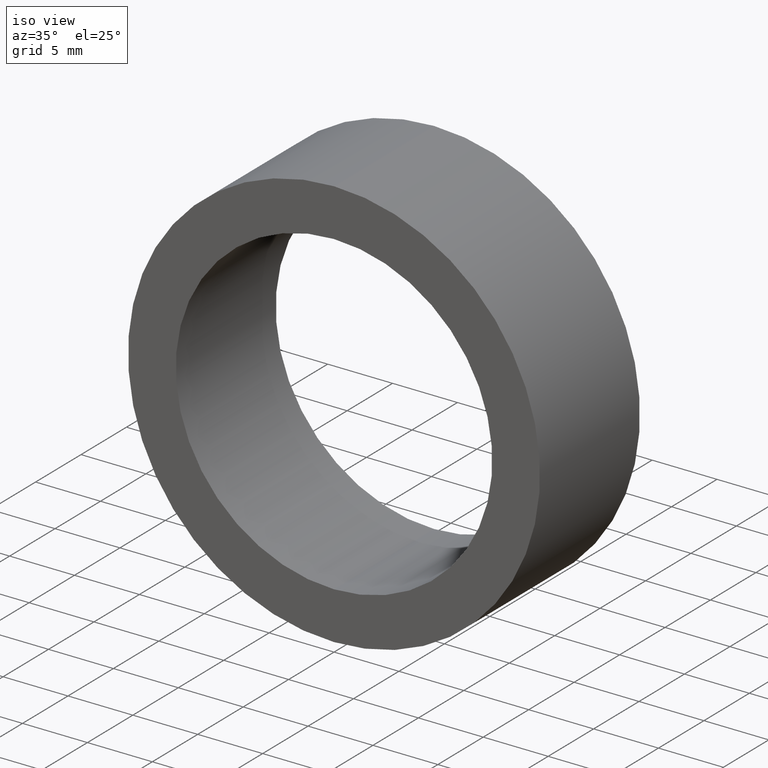
[diagram: clean part render]
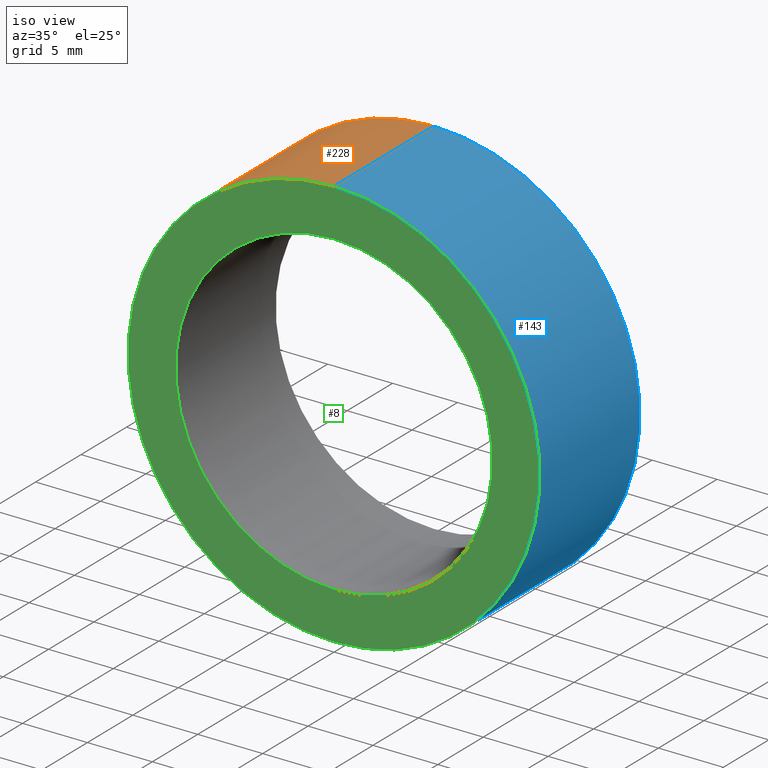
[diagram: same view with three faces highlighted in distinct colors, each labeled with its STEP entity id]
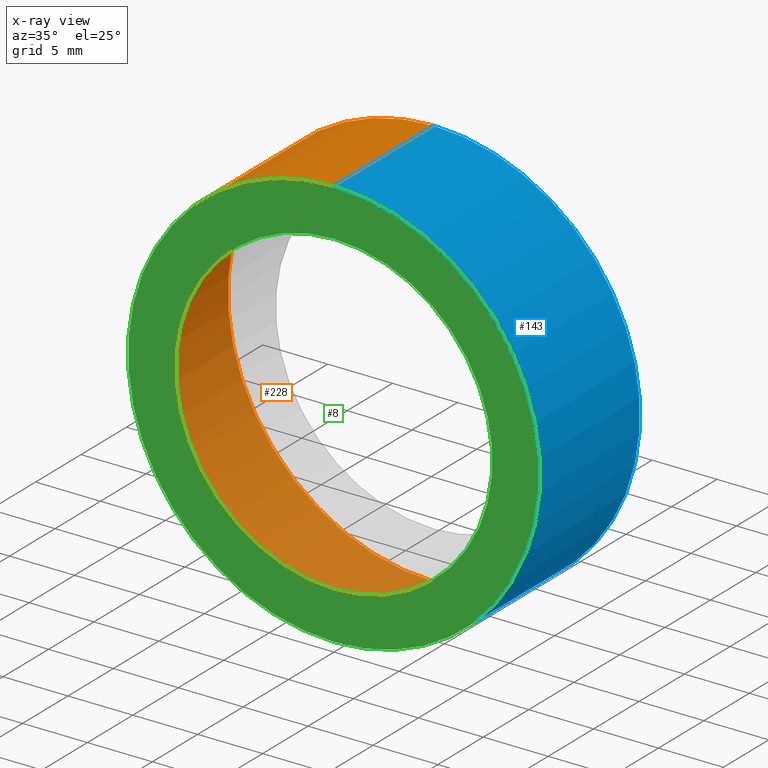
[diagram: x-ray of the same camera — body ghosted, the three highlighted faces saturated]
A machine part, iso view with three faces highlighted in distinct colors.
The next image is the same camera in x-ray (body ghosted, the three faces saturated) — at least one of them is partly hidden behind the body in this view.
Their STEP definitions:

[orange] entity #228 — the highlighted cylindrical surface (partial cylindrical patch) has radius 15.875 mm, axis along (-0, -1, -0).
#17 = CARTESIAN_POINT ( 'NONE',  ( 0.0000000000000000000, 11.00000000000000000, 0.0000000000000000000 ) ) ;
#20 = DIRECTION ( 'NONE',  ( 0.0000000000000000000, 0.0000000000000000000, 1.000000000000000000 ) ) ;
#22 = CARTESIAN_POINT ( 'NONE',  ( 0.0000000000000000000, 11.00000000000000000, -15.87500000000000000 ) ) ;
#31 = ORIENTED_EDGE ( 'NONE', *, *, #135, .T. ) ;
#35 = DIRECTION ( 'NONE',  ( -0.0000000000000000000, -1.000000000000000000, -0.0000000000000000000 ) ) ;
#42 = EDGE_CURVE ( 'NONE', #95, #235, #121, .T. ) ;
#43 = VECTOR ( 'NONE', #103, 1000.000000000000000 ) ;
#57 = DIRECTION ( 'NONE',  ( -0.0000000000000000000, -1.000000000000000000, -0.0000000000000000000 ) ) ;
#58 = VECTOR ( 'NONE', #57, 1000.000000000000000 ) ;
#67 = CIRCLE ( 'NONE', #214, 15.87500000000000000 ) ;
#76 = AXIS2_PLACEMENT_3D ( 'NONE', #171, #101, #20 ) ;
#85 = EDGE_LOOP ( 'NONE', ( #207, #106, #87, #31 ) ) ;
#87 = ORIENTED_EDGE ( 'NONE', *, *, #42, .T. ) ;
#89 = CARTESIAN_POINT ( 'NONE',  ( 1.944126793646423200E-015, 0.0000000000000000000, 15.87500000000000000 ) ) ;
#95 = VERTEX_POINT ( 'NONE', #22 ) ;
#96 = FACE_OUTER_BOUND ( 'NONE', #85, .T. ) ;
#101 = DIRECTION ( 'NONE',  ( 0.0000000000000000000, 1.000000000000000000, 0.0000000000000000000 ) ) ;
#103 = DIRECTION ( 'NONE',  ( -0.0000000000000000000, -1.000000000000000000, -0.0000000000000000000 ) ) ;
#106 = ORIENTED_EDGE ( 'NONE', *, *, #139, .F. ) ;
#109 = EDGE_CURVE ( 'NONE', #142, #226, #221, .T. ) ;
#114 = CARTESIAN_POINT ( 'NONE',  ( 0.0000000000000000000, 0.0000000000000000000, 0.0000000000000000000 ) ) ;
#121 = LINE ( 'NONE', #205, #58 ) ;
#124 = CARTESIAN_POINT ( 'NONE',  ( 0.0000000000000000000, 0.0000000000000000000, -15.87500000000000000 ) ) ;
#135 = EDGE_CURVE ( 'NONE', #235, #226, #67, .T. ) ;
#139 = EDGE_CURVE ( 'NONE', #95, #142, #168, .T. ) ;
#142 = VERTEX_POINT ( 'NONE', #232 ) ;
#145 = DIRECTION ( 'NONE',  ( 0.0000000000000000000, 1.000000000000000000, 0.0000000000000000000 ) ) ;
#157 = DIRECTION ( 'NONE',  ( 0.0000000000000000000, 0.0000000000000000000, 1.000000000000000000 ) ) ;
#168 = CIRCLE ( 'NONE', #76, 15.87500000000000000 ) ;
#171 = CARTESIAN_POINT ( 'NONE',  ( 0.0000000000000000000, 11.00000000000000000, 0.0000000000000000000 ) ) ;
#175 = CYLINDRICAL_SURFACE ( 'NONE', #177, 15.87500000000000000 ) ;
#177 = AXIS2_PLACEMENT_3D ( 'NONE', #17, #35, #179 ) ;
#179 = DIRECTION ( 'NONE',  ( 0.0000000000000000000, 0.0000000000000000000, -1.000000000000000000 ) ) ;
#205 = CARTESIAN_POINT ( 'NONE',  ( 0.0000000000000000000, 11.00000000000000000, -15.87500000000000000 ) ) ;
#207 = ORIENTED_EDGE ( 'NONE', *, *, #109, .F. ) ;
#214 = AXIS2_PLACEMENT_3D ( 'NONE', #114, #145, #157 ) ;
#221 = LINE ( 'NONE', #231, #43 ) ;
#226 = VERTEX_POINT ( 'NONE', #89 ) ;
#228 = ADVANCED_FACE ( 'NONE', ( #96 ), #175, .T. ) ;
#231 = CARTESIAN_POINT ( 'NONE',  ( 1.944126793646423200E-015, 11.00000000000000000, 15.87500000000000000 ) ) ;
#232 = CARTESIAN_POINT ( 'NONE',  ( 1.944126793646423200E-015, 11.00000000000000000, 15.87500000000000000 ) ) ;
#235 = VERTEX_POINT ( 'NONE', #124 ) ;

[blue] entity #143 — the highlighted cylindrical surface (partial cylindrical patch) has radius 15.875 mm, axis along (-0, -1, -0).
#5 = CARTESIAN_POINT ( 'NONE',  ( 0.0000000000000000000, 11.00000000000000000, 0.0000000000000000000 ) ) ;
#13 = CIRCLE ( 'NONE', #148, 15.87500000000000000 ) ;
#18 = CARTESIAN_POINT ( 'NONE',  ( 0.0000000000000000000, 0.0000000000000000000, 0.0000000000000000000 ) ) ;
#19 = CIRCLE ( 'NONE', #54, 15.87500000000000000 ) ;
#22 = CARTESIAN_POINT ( 'NONE',  ( 0.0000000000000000000, 11.00000000000000000, -15.87500000000000000 ) ) ;
#33 = DIRECTION ( 'NONE',  ( 0.0000000000000000000, 0.0000000000000000000, -1.000000000000000000 ) ) ;
#37 = EDGE_CURVE ( 'NONE', #226, #235, #19, .T. ) ;
#42 = EDGE_CURVE ( 'NONE', #95, #235, #121, .T. ) ;
#43 = VECTOR ( 'NONE', #103, 1000.000000000000000 ) ;
#46 = EDGE_CURVE ( 'NONE', #142, #95, #13, .T. ) ;
#53 = ORIENTED_EDGE ( 'NONE', *, *, #37, .T. ) ;
#54 = AXIS2_PLACEMENT_3D ( 'NONE', #18, #82, #198 ) ;
#57 = DIRECTION ( 'NONE',  ( -0.0000000000000000000, -1.000000000000000000, -0.0000000000000000000 ) ) ;
#58 = VECTOR ( 'NONE', #57, 1000.000000000000000 ) ;
#75 = EDGE_LOOP ( 'NONE', ( #138, #123, #53, #81 ) ) ;
#81 = ORIENTED_EDGE ( 'NONE', *, *, #42, .F. ) ;
#82 = DIRECTION ( 'NONE',  ( 0.0000000000000000000, 1.000000000000000000, 0.0000000000000000000 ) ) ;
#89 = CARTESIAN_POINT ( 'NONE',  ( 1.944126793646423200E-015, 0.0000000000000000000, 15.87500000000000000 ) ) ;
#91 = DIRECTION ( 'NONE',  ( 0.0000000000000000000, 0.0000000000000000000, 1.000000000000000000 ) ) ;
#95 = VERTEX_POINT ( 'NONE', #22 ) ;
#103 = DIRECTION ( 'NONE',  ( -0.0000000000000000000, -1.000000000000000000, -0.0000000000000000000 ) ) ;
#109 = EDGE_CURVE ( 'NONE', #142, #226, #221, .T. ) ;
#121 = LINE ( 'NONE', #205, #58 ) ;
#123 = ORIENTED_EDGE ( 'NONE', *, *, #109, .T. ) ;
#124 = CARTESIAN_POINT ( 'NONE',  ( 0.0000000000000000000, 0.0000000000000000000, -15.87500000000000000 ) ) ;
#136 = DIRECTION ( 'NONE',  ( -0.0000000000000000000, -1.000000000000000000, -0.0000000000000000000 ) ) ;
#138 = ORIENTED_EDGE ( 'NONE', *, *, #46, .F. ) ;
#142 = VERTEX_POINT ( 'NONE', #232 ) ;
#143 = ADVANCED_FACE ( 'NONE', ( #174 ), #238, .T. ) ;
#148 = AXIS2_PLACEMENT_3D ( 'NONE', #5, #204, #91 ) ;
#169 = AXIS2_PLACEMENT_3D ( 'NONE', #193, #136, #33 ) ;
#174 = FACE_OUTER_BOUND ( 'NONE', #75, .T. ) ;
#193 = CARTESIAN_POINT ( 'NONE',  ( 0.0000000000000000000, 11.00000000000000000, 0.0000000000000000000 ) ) ;
#198 = DIRECTION ( 'NONE',  ( 0.0000000000000000000, 0.0000000000000000000, 1.000000000000000000 ) ) ;
#204 = DIRECTION ( 'NONE',  ( 0.0000000000000000000, 1.000000000000000000, 0.0000000000000000000 ) ) ;
#205 = CARTESIAN_POINT ( 'NONE',  ( 0.0000000000000000000, 11.00000000000000000, -15.87500000000000000 ) ) ;
#221 = LINE ( 'NONE', #231, #43 ) ;
#226 = VERTEX_POINT ( 'NONE', #89 ) ;
#231 = CARTESIAN_POINT ( 'NONE',  ( 1.944126793646423200E-015, 11.00000000000000000, 15.87500000000000000 ) ) ;
#232 = CARTESIAN_POINT ( 'NONE',  ( 1.944126793646423200E-015, 11.00000000000000000, 15.87500000000000000 ) ) ;
#235 = VERTEX_POINT ( 'NONE', #124 ) ;
#238 = CYLINDRICAL_SURFACE ( 'NONE', #169, 15.87500000000000000 ) ;

[green] entity #8 — the highlighted planar face has unit normal (0, 1, 0).
#3 = DIRECTION ( 'NONE',  ( 0.0000000000000000000, 1.000000000000000000, 0.0000000000000000000 ) ) ;
#4 = DIRECTION ( 'NONE',  ( 0.0000000000000000000, -0.0000000000000000000, 1.000000000000000000 ) ) ;
#8 = ADVANCED_FACE ( 'NONE', ( #242, #216 ), #236, .F. ) ;
#18 = CARTESIAN_POINT ( 'NONE',  ( 0.0000000000000000000, 0.0000000000000000000, 0.0000000000000000000 ) ) ;
#19 = CIRCLE ( 'NONE', #54, 15.87500000000000000 ) ;
#36 = CIRCLE ( 'NONE', #219, 12.19999999999999900 ) ;
#37 = EDGE_CURVE ( 'NONE', #226, #235, #19, .T. ) ;
#48 = ORIENTED_EDGE ( 'NONE', *, *, #201, .T. ) ;
#49 = EDGE_LOOP ( 'NONE', ( #224, #191 ) ) ;
#51 = DIRECTION ( 'NONE',  ( 0.0000000000000000000, 0.0000000000000000000, 1.000000000000000000 ) ) ;
#54 = AXIS2_PLACEMENT_3D ( 'NONE', #18, #82, #198 ) ;
#59 = CARTESIAN_POINT ( 'NONE',  ( 0.0000000000000000000, 0.0000000000000000000, 0.0000000000000000000 ) ) ;
#67 = CIRCLE ( 'NONE', #214, 15.87500000000000000 ) ;
#70 = AXIS2_PLACEMENT_3D ( 'NONE', #127, #237, #194 ) ;
#71 = EDGE_CURVE ( 'NONE', #160, #73, #36, .T. ) ;
#73 = VERTEX_POINT ( 'NONE', #164 ) ;
#82 = DIRECTION ( 'NONE',  ( 0.0000000000000000000, 1.000000000000000000, 0.0000000000000000000 ) ) ;
#89 = CARTESIAN_POINT ( 'NONE',  ( 1.944126793646423200E-015, 0.0000000000000000000, 15.87500000000000000 ) ) ;
#104 = CARTESIAN_POINT ( 'NONE',  ( 1.494069094959770900E-015, 0.0000000000000000000, 12.19999999999999900 ) ) ;
#107 = CIRCLE ( 'NONE', #70, 12.19999999999999900 ) ;
#108 = CARTESIAN_POINT ( 'NONE',  ( 0.0000000000000000000, 0.0000000000000000000, 0.0000000000000000000 ) ) ;
#114 = CARTESIAN_POINT ( 'NONE',  ( 0.0000000000000000000, 0.0000000000000000000, 0.0000000000000000000 ) ) ;
#116 = DIRECTION ( 'NONE',  ( 0.0000000000000000000, 1.000000000000000000, 0.0000000000000000000 ) ) ;
#124 = CARTESIAN_POINT ( 'NONE',  ( 0.0000000000000000000, 0.0000000000000000000, -15.87500000000000000 ) ) ;
#127 = CARTESIAN_POINT ( 'NONE',  ( 0.0000000000000000000, 0.0000000000000000000, 0.0000000000000000000 ) ) ;
#130 = EDGE_LOOP ( 'NONE', ( #48, #134 ) ) ;
#134 = ORIENTED_EDGE ( 'NONE', *, *, #71, .T. ) ;
#135 = EDGE_CURVE ( 'NONE', #235, #226, #67, .T. ) ;
#145 = DIRECTION ( 'NONE',  ( 0.0000000000000000000, 1.000000000000000000, 0.0000000000000000000 ) ) ;
#157 = DIRECTION ( 'NONE',  ( 0.0000000000000000000, 0.0000000000000000000, 1.000000000000000000 ) ) ;
#160 = VERTEX_POINT ( 'NONE', #104 ) ;
#164 = CARTESIAN_POINT ( 'NONE',  ( 0.0000000000000000000, 0.0000000000000000000, -12.19999999999999900 ) ) ;
#191 = ORIENTED_EDGE ( 'NONE', *, *, #37, .F. ) ;
#192 = AXIS2_PLACEMENT_3D ( 'NONE', #59, #116, #4 ) ;
#194 = DIRECTION ( 'NONE',  ( 0.0000000000000000000, 0.0000000000000000000, 1.000000000000000000 ) ) ;
#198 = DIRECTION ( 'NONE',  ( 0.0000000000000000000, 0.0000000000000000000, 1.000000000000000000 ) ) ;
#201 = EDGE_CURVE ( 'NONE', #73, #160, #107, .T. ) ;
#214 = AXIS2_PLACEMENT_3D ( 'NONE', #114, #145, #157 ) ;
#216 = FACE_BOUND ( 'NONE', #130, .T. ) ;
#219 = AXIS2_PLACEMENT_3D ( 'NONE', #108, #3, #51 ) ;
#224 = ORIENTED_EDGE ( 'NONE', *, *, #135, .F. ) ;
#226 = VERTEX_POINT ( 'NONE', #89 ) ;
#235 = VERTEX_POINT ( 'NONE', #124 ) ;
#236 = PLANE ( 'NONE',  #192 ) ;
#237 = DIRECTION ( 'NONE',  ( 0.0000000000000000000, 1.000000000000000000, 0.0000000000000000000 ) ) ;
#242 = FACE_OUTER_BOUND ( 'NONE', #49, .T. ) ;